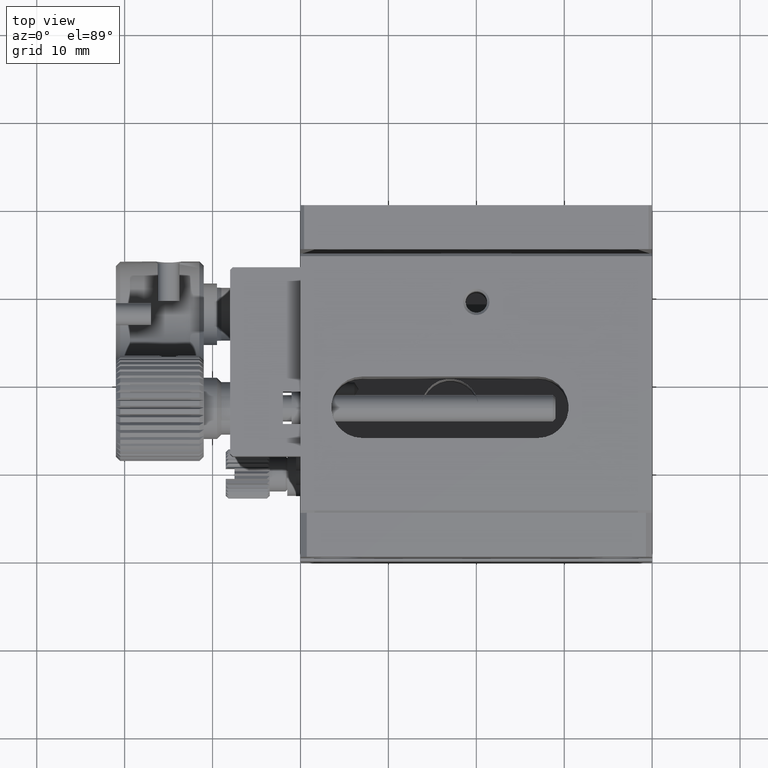
[diagram: clean part render]
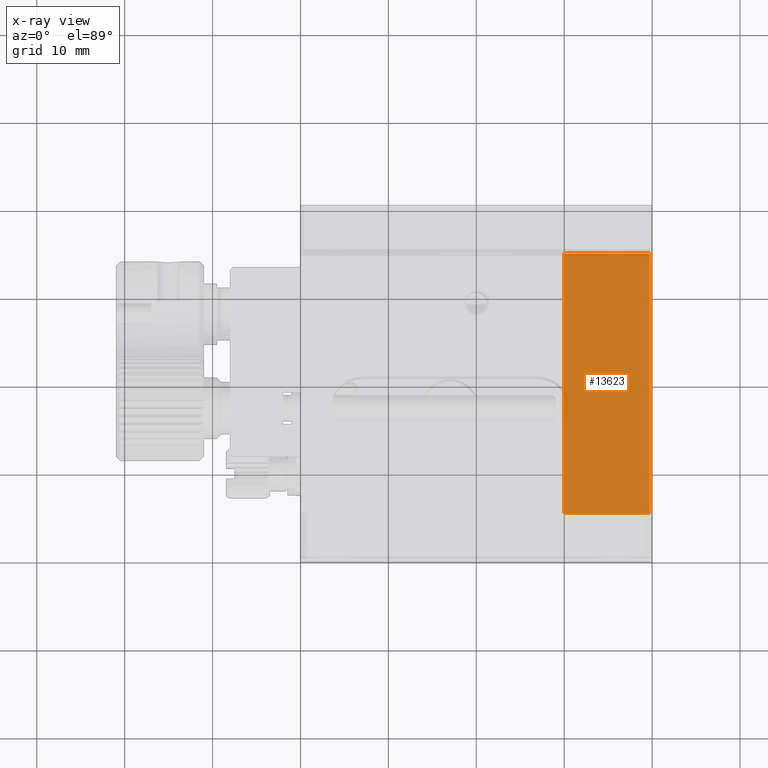
[diagram: x-ray — body ghosted, one internal face saturated and labeled with its STEP entity id]
A machine part, top view, then the same camera in x-ray: the body is ghosted and one INTERNAL B-rep face — a face not visible from any outside direction — is saturated and labeled: STEP entity #13623.
In plain terms, the highlighted planar face has unit normal (0, 0, 1).
Its self-contained STEP definition (entity closure, byte-faithful):
#601 = DIRECTION ( 'NONE',  ( -1.000000000000000000, 0.000000000000000000, 0.000000000000000000 ) ) ;
#776 = EDGE_CURVE ( 'NONE', #13636, #19433, #18983, .T. ) ;
#891 = FACE_OUTER_BOUND ( 'NONE', #16550, .T. ) ;
#2177 = VECTOR ( 'NONE', #601, 1000.000000000000000 ) ;
#2840 = LINE ( 'NONE', #17751, #7425 ) ;
#3956 = EDGE_CURVE ( 'NONE', #16422, #13636, #5620, .T. ) ;
#5620 = LINE ( 'NONE', #7090, #6098 ) ;
#5682 = VERTEX_POINT ( 'NONE', #7956 ) ;
#5909 = CARTESIAN_POINT ( 'NONE',  ( 30.00000000000000000, 35.00000000000000000, -31.50000000000000000 ) ) ;
#6098 = VECTOR ( 'NONE', #11506, 1000.000000000000000 ) ;
#6664 = ORIENTED_EDGE ( 'NONE', *, *, #776, .T. ) ;
#6736 = ORIENTED_EDGE ( 'NONE', *, *, #14144, .F. ) ;
#7090 = CARTESIAN_POINT ( 'NONE',  ( 30.00000000000000000, 5.499999999999998224, -31.50000000000000000 ) ) ;
#7412 = CARTESIAN_POINT ( 'NONE',  ( 0.000000000000000000, 5.499999999999998224, -31.50000000000000000 ) ) ;
#7425 = VECTOR ( 'NONE', #9229, 1000.000000000000000 ) ;
#7881 = CARTESIAN_POINT ( 'NONE',  ( 0.000000000000000000, 35.00000000000000000, -31.50000000000000000 ) ) ;
#7956 = CARTESIAN_POINT ( 'NONE',  ( 39.70000000000000284, 35.00000000000000000, -31.50000000000000000 ) ) ;
#8803 = CARTESIAN_POINT ( 'NONE',  ( 39.70000000000000995, 5.499999999999998224, -31.50000000000000000 ) ) ;
#9229 = DIRECTION ( 'NONE',  ( -0.000000000000000000, -1.000000000000000000, -0.000000000000000000 ) ) ;
#9434 = ORIENTED_EDGE ( 'NONE', *, *, #17820, .T. ) ;
#10701 = VECTOR ( 'NONE', #13282, 1000.000000000000000 ) ;
#11397 = DIRECTION ( 'NONE',  ( 1.000000000000000000, 0.000000000000000000, 0.000000000000000000 ) ) ;
#11506 = DIRECTION ( 'NONE',  ( -0.000000000000000000, -1.000000000000000000, -0.000000000000000000 ) ) ;
#12479 = LINE ( 'NONE', #7881, #2177 ) ;
#13148 = DIRECTION ( 'NONE',  ( 0.000000000000000000, 0.000000000000000000, 1.000000000000000000 ) ) ;
#13282 = DIRECTION ( 'NONE',  ( 1.000000000000000000, -0.000000000000000000, -0.000000000000000000 ) ) ;
#13623 = ADVANCED_FACE ( 'NONE', ( #891 ), #17281, .T. ) ;
#13636 = VERTEX_POINT ( 'NONE', #14531 ) ;
#13983 = AXIS2_PLACEMENT_3D ( 'NONE', #18855, #13148, #11397 ) ;
#14144 = EDGE_CURVE ( 'NONE', #5682, #19433, #2840, .T. ) ;
#14531 = CARTESIAN_POINT ( 'NONE',  ( 30.00000000000000000, 5.499999999999998224, -31.50000000000000000 ) ) ;
#16422 = VERTEX_POINT ( 'NONE', #5909 ) ;
#16550 = EDGE_LOOP ( 'NONE', ( #6664, #6736, #9434, #18579 ) ) ;
#17281 = PLANE ( 'NONE',  #13983 ) ;
#17751 = CARTESIAN_POINT ( 'NONE',  ( 39.70000000000000284, 5.499999999999998224, -31.50000000000000000 ) ) ;
#17820 = EDGE_CURVE ( 'NONE', #5682, #16422, #12479, .T. ) ;
#18579 = ORIENTED_EDGE ( 'NONE', *, *, #3956, .T. ) ;
#18855 = CARTESIAN_POINT ( 'NONE',  ( 30.00000000000000000, 5.499999999999998224, -31.50000000000000000 ) ) ;
#18983 = LINE ( 'NONE', #7412, #10701 ) ;
#19433 = VERTEX_POINT ( 'NONE', #8803 ) ;